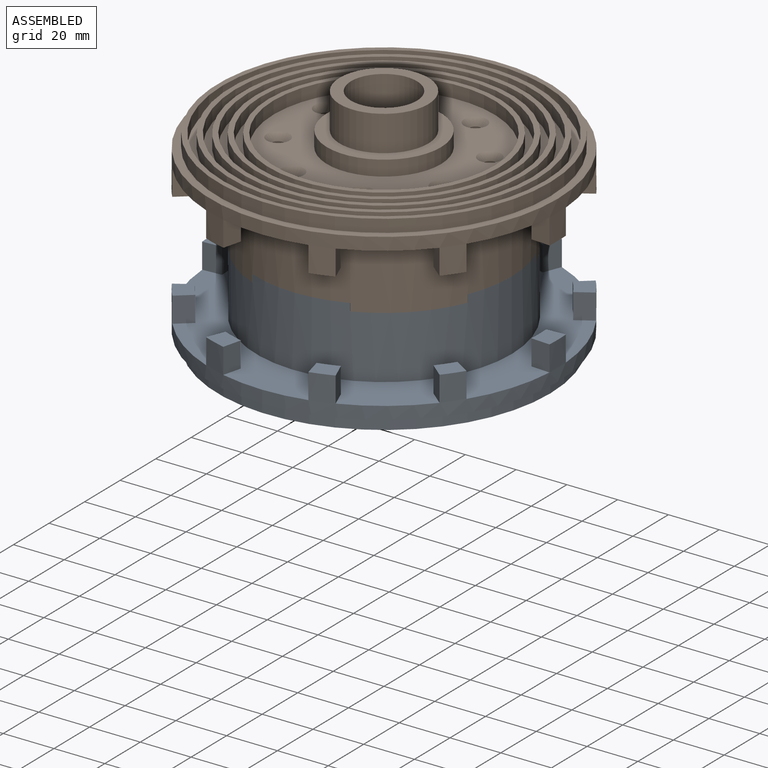
[diagram: assembled view]
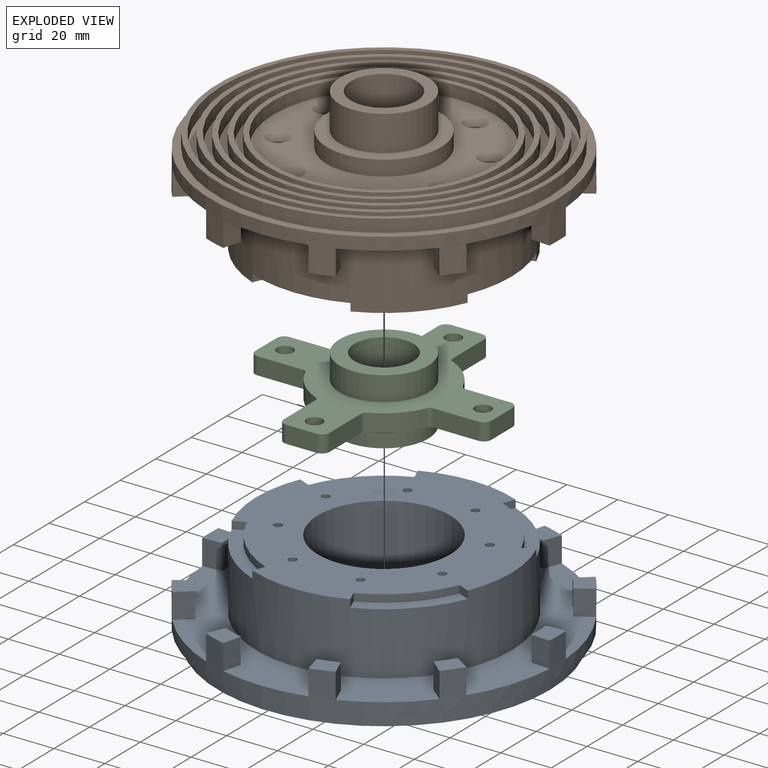
[diagram: exploded view]
GUIDED TOUR — MATED ASSEMBLY (Onshape document 10df3d06e0f9d85a6f5e6462, AutoMate assembly 10df3d06e0f9d85a6f5e6462_b576a68d9322fb40dd71ba98_1f96c116ace7674551269e63_default)

This assembly has 3 components, labeled P0..P2 below (a component is one placed occurrence of a part; the same part can appear more than once), held together by 2 mates. A mate is a constraint between two components; its type names the relative motion it leaves free:
  FASTENED — locks the two components together rigidly (no relative motion).
Axis/direction vectors are unit vectors and 'through' points are millimeter coordinates, both in the assembly's world frame.

MATES
  1. FASTENED "Fastened 3": P0 <-> P1, direction (0.000, 0.000, 1.000) through (0.00, 0.00, -52.60) mm
  2. FASTENED "Fastened 2": P1 <-> P2, direction (0.000, 0.000, -1.000) through (0.00, -39.00, -45.60) mm

ASSEMBLY ORDER
  1. P1 — the base component [order heuristic]
  2. P2 — core [order heuristic]
  3. P0 [order verified]
(P0 verified with a relaxed clearance tolerance: the source model stores slight part interference there.)
Order-tag legend:
  [order verified] — this step's position reverses a verified removal order: the component was checked to insert without passing through the ones already placed.
  [order heuristic] — the first 2 components form the assembly's core: parts whose collision-free extraction could not be verified, listed in mate-graph order.

Of the 3 components, 2 carry the full construction recipe — the FeatureScript program that regenerates the part's solid from scratch; the rest are supplied as boundary geometry only.
Each toured component is shown spotlighted twice — in the assembled view, then in the exploded view, where a leader line traces a displaced component back to its assembled socket (saturated green if recipe-attached, orange if geometry-only; every other component desaturated gray) — followed by its recipe or geometry summary and the mates that hold it.
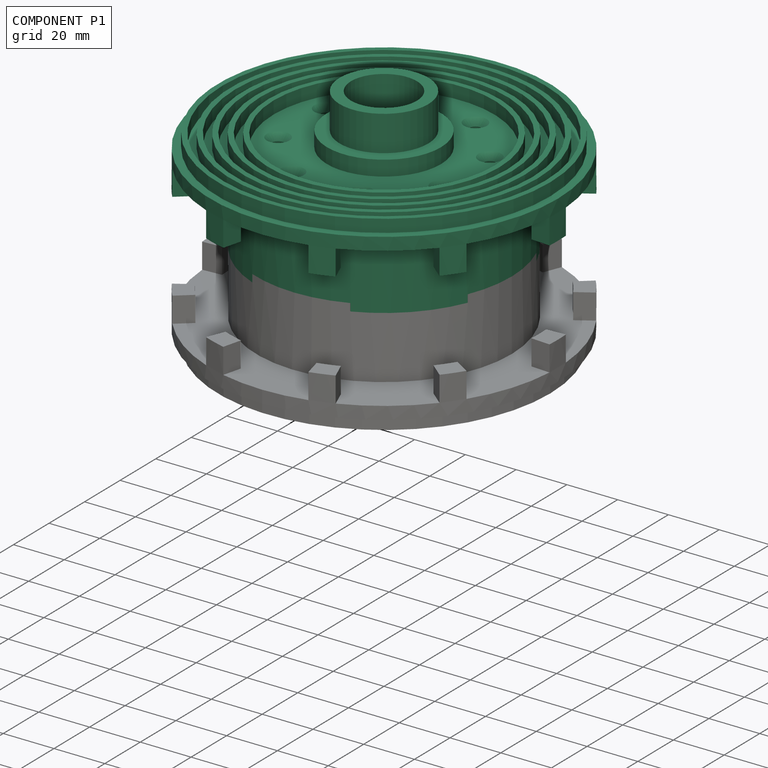
[diagram: component P1 — assembled]
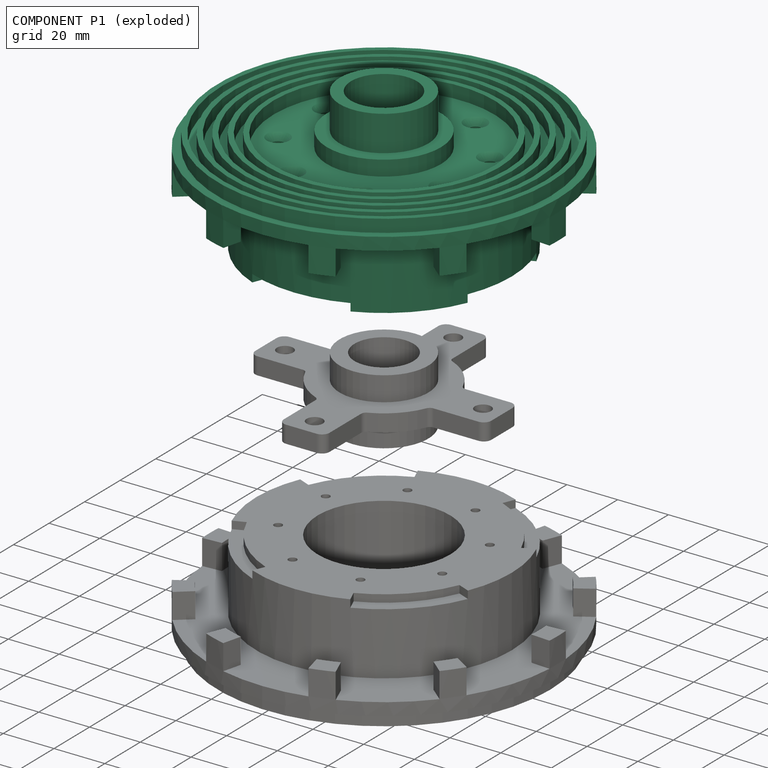
[diagram: component P1 — exploded]
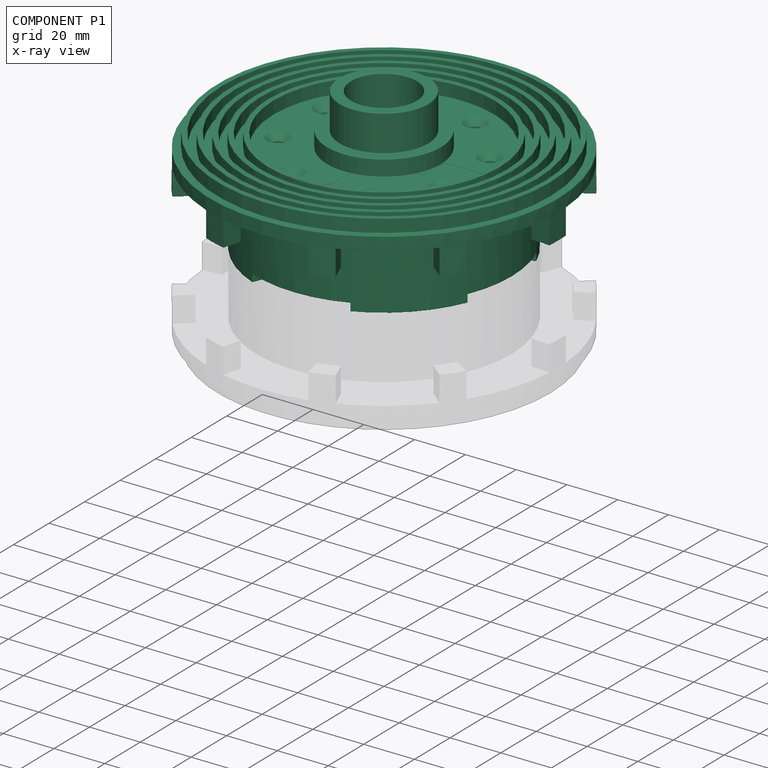
[diagram: component P1 — x-ray view]
COMPONENT P1 — recipe-attached (CADFS 00198858, mesh-verified: the recipe's output STEP matches this component's geometry to below the mesh-comparison resolution (tessellation chordal tolerance ~0.303 mm)).
Held by: FASTENED mate "Fastened 3" to P0; FASTENED mate "Fastened 2" to P2.
Construction recipe (FeatureScript — the CAD program that rebuilds this solid; sketch coordinates are in the units given by the * unit suffixes, e.g. mm):

FeatureScript 1511;
import(path : "onshape/std/geometry.fs", version : "1511.0");
import(path : "onshape/std/common.fs", version : "1511.0");
const mm = millimeter;
const VERTEX = EntityType.VERTEX;
const EDGE = EntityType.EDGE;
const FACE = EntityType.FACE;
const BODY = EntityType.BODY;
function v(x, y){return vector(x, y);}
function OD(order){return orderDisambiguation(order);}
function OSD(set){return originalSetDisambiguation(set);}
function TD(topology){return topologyDisambiguation(topology);}
function TDD(query){return trueDependencyDisambiguation(query);}
function sQuery(a, b, c) {return sketchEntityQuery(a, b, c);}

annotation { "Feature Type Name" : "Feature", "Feature Type Description" : "" }
export const myFeature = defineFeature(function(context is Context, id is Id, definition is map)
    precondition{}
    {
        {
            var Q0;
            Q0=qCreatedBy(makeId("Top.planeOp"),FACE);
            var sketch = newSketch(context, id + "F0", { "sketchPlane" : qUnion([Q0])});
            skCircle(sketch, "E0", {"center": v(0, 0) * mm, "radius": 50.15 * mm, "construction": true});
            skCircle(sketch, "E1", {"center": v(0, 0) * mm, "radius": 68.57 * mm});
            skCircle(sketch, "E2", {"center": v(0, 0) * mm, "radius": 61.01 * mm, "construction": true});
            skSolve(sketch);
        }
        {
            var Q0;
            Q0 = qSketchRegion(id + "F0", true);
            extrude(context, id + "F1", {"entities" : qUnion([Q0]), "depth" : 27.6 * mm});
        }
        {
            var Q0;
            Q0=makeQuery(id+"F1.opExtrude","CAP_FACE",FACE,{"disambiguationData":[OSD([sQuery(id+"F0.wireOp",EDGE,"E1")])],"isStart":true});
            var sketch = newSketch(context, id + "F2", { "sketchPlane" : qUnion([Q0])});
            skLineSegment(sketch, "E3", {"start": v(0, 0) * mm, "end": v(-16.76, -66.49) * mm, "construction": true});
            skLineSegment(sketch, "E4", {"start": v(0, 0) * mm, "end": v(20.02, -79.4) * mm, "construction": true});
            skLineSegment(sketch, "E5", {"start": v(-14.91, -59.15) * mm, "end": v(14.91, -59.15) * mm});
            skLineSegment(sketch, "E6", {"start": v(-14.91, -59.15) * mm, "end": v(-18.58, -73.7) * mm});
            skLineSegment(sketch, "E7", {"start": v(-18.58, -73.7) * mm, "end": v(18.58, -73.7) * mm});
            skLineSegment(sketch, "E8", {"start": v(18.58, -73.7) * mm, "end": v(14.91, -59.15) * mm});
            skSolve(sketch);
        }
        {
            var Q0;
            Q0 = qSketchRegion(id + "F2", true);
            extrude(context, id + "F3", {"entities" : qUnion([Q0]), "endBound" : BoundingType.SYMMETRIC, "depth" : 75 * mm});
        }
        {
            var Q0;
            Q0=makeQuery(id+"F3.opExtrude","SWEPT_BODY",BODY,{"disambiguationData":[OSD([sQuery(id+"F2.wireOp",EDGE,"E5"),sQuery(id+"F2.wireOp",EDGE,"E6"),sQuery(id+"F2.wireOp",EDGE,"E7"),sQuery(id+"F2.wireOp",EDGE,"E8")])]});
            var Q1;
            Q1=makeQuery(id+"F1.opExtrude","SWEPT_FACE",FACE,{"disambiguationData":[OSD([sQuery(id+"F0.wireOp",EDGE,"E1")])]});
            circularPattern(context, id + "F4", {"entities" : qUnion([Q0]), "axis" : qUnion([Q1]), "angle" : 36 * degree, "instanceCount" : 10});
        }
        {
            var Q0;
            Q0=makeQuery(id+"F4.opPattern","COPY",BODY,{"derivedFrom":makeQuery(id+"F3.opExtrude","SWEPT_BODY",BODY,{"disambiguationData":[OSD([sQuery(id+"F2.wireOp",EDGE,"E5"),sQuery(id+"F2.wireOp",EDGE,"E6"),sQuery(id+"F2.wireOp",EDGE,"E7"),sQuery(id+"F2.wireOp",EDGE,"E8")])]}),"instanceName":"7"});
            var Q1;
            Q1=makeQuery(id+"F4.opPattern","COPY",BODY,{"derivedFrom":makeQuery(id+"F3.opExtrude","SWEPT_BODY",BODY,{"disambiguationData":[OSD([sQuery(id+"F2.wireOp",EDGE,"E5"),sQuery(id+"F2.wireOp",EDGE,"E6"),sQuery(id+"F2.wireOp",EDGE,"E7"),sQuery(id+"F2.wireOp",EDGE,"E8")])]}),"instanceName":"8"});
            var Q2;
            Q2=makeQuery(id+"F4.opPattern","COPY",BODY,{"derivedFrom":makeQuery(id+"F3.opExtrude","SWEPT_BODY",BODY,{"disambiguationData":[OSD([sQuery(id+"F2.wireOp",EDGE,"E5"),sQuery(id+"F2.wireOp",EDGE,"E6"),sQuery(id+"F2.wireOp",EDGE,"E7"),sQuery(id+"F2.wireOp",EDGE,"E8")])]}),"instanceName":"9"});
            var Q3;
            Q3=makeQuery(id+"F3.opExtrude","SWEPT_BODY",BODY,{"disambiguationData":[OSD([sQuery(id+"F2.wireOp",EDGE,"E5"),sQuery(id+"F2.wireOp",EDGE,"E6"),sQuery(id+"F2.wireOp",EDGE,"E7"),sQuery(id+"F2.wireOp",EDGE,"E8")])]});
            var Q4;
            Q4=makeQuery(id+"F4.opPattern","COPY",BODY,{"derivedFrom":makeQuery(id+"F3.opExtrude","SWEPT_BODY",BODY,{"disambiguationData":[OSD([sQuery(id+"F2.wireOp",EDGE,"E5"),sQuery(id+"F2.wireOp",EDGE,"E6"),sQuery(id+"F2.wireOp",EDGE,"E7"),sQuery(id+"F2.wireOp",EDGE,"E8")])]}),"instanceName":"1"});
            var Q5;
            Q5=makeQuery(id+"F4.opPattern","COPY",BODY,{"derivedFrom":makeQuery(id+"F3.opExtrude","SWEPT_BODY",BODY,{"disambiguationData":[OSD([sQuery(id+"F2.wireOp",EDGE,"E5"),sQuery(id+"F2.wireOp",EDGE,"E6"),sQuery(id+"F2.wireOp",EDGE,"E7"),sQuery(id+"F2.wireOp",EDGE,"E8")])]}),"instanceName":"2"});
            var Q6;
            Q6=makeQuery(id+"F4.opPattern","COPY",BODY,{"derivedFrom":makeQuery(id+"F3.opExtrude","SWEPT_BODY",BODY,{"disambiguationData":[OSD([sQuery(id+"F2.wireOp",EDGE,"E5"),sQuery(id+"F2.wireOp",EDGE,"E6"),sQuery(id+"F2.wireOp",EDGE,"E7"),sQuery(id+"F2.wireOp",EDGE,"E8")])]}),"instanceName":"3"});
            var Q7;
            Q7=makeQuery(id+"F4.opPattern","COPY",BODY,{"derivedFrom":makeQuery(id+"F3.opExtrude","SWEPT_BODY",BODY,{"disambiguationData":[OSD([sQuery(id+"F2.wireOp",EDGE,"E5"),sQuery(id+"F2.wireOp",EDGE,"E6"),sQuery(id+"F2.wireOp",EDGE,"E7"),sQuery(id+"F2.wireOp",EDGE,"E8")])]}),"instanceName":"4"});
            var Q8;
            Q8=makeQuery(id+"F4.opPattern","COPY",BODY,{"derivedFrom":makeQuery(id+"F3.opExtrude","SWEPT_BODY",BODY,{"disambiguationData":[OSD([sQuery(id+"F2.wireOp",EDGE,"E5"),sQuery(id+"F2.wireOp",EDGE,"E6"),sQuery(id+"F2.wireOp",EDGE,"E7"),sQuery(id+"F2.wireOp",EDGE,"E8")])]}),"instanceName":"5"});
            var Q9;
            Q9=makeQuery(id+"F4.opPattern","COPY",BODY,{"derivedFrom":makeQuery(id+"F3.opExtrude","SWEPT_BODY",BODY,{"disambiguationData":[OSD([sQuery(id+"F2.wireOp",EDGE,"E5"),sQuery(id+"F2.wireOp",EDGE,"E6"),sQuery(id+"F2.wireOp",EDGE,"E7"),sQuery(id+"F2.wireOp",EDGE,"E8")])]}),"instanceName":"6"});
            var Q10;
            Q10=makeQuery(id+"F1.opExtrude","SWEPT_BODY",BODY,{"disambiguationData":[OSD([sQuery(id+"F0.wireOp",EDGE,"E1")])]});
            booleanBodies(context, id + "F5", {"operationType" : BooleanOperationType.SUBTRACTION, "tools" : qUnion([Q0, Q1, Q2, Q3, Q4, Q5, Q6, Q7, Q8, Q9]), "targets" : qUnion([Q10])});
        }
        {
            var Q0;
            Q0=makeQuery(id+"F1.opExtrude","CAP_FACE",FACE,{"disambiguationData":[OSD([sQuery(id+"F0.wireOp",EDGE,"E1")])],"isStart":false});
            var sketch = newSketch(context, id + "F6", { "sketchPlane" : qUnion([Q0])});
            skCircle(sketch, "E9", {"center": v(0, 0) * mm, "radius": 68.57 * mm});
            skSolve(sketch);
        }
        {
            var Q0;
            Q0 = qSketchRegion(id + "F6", true);
            extrude(context, id + "F7", {"entities" : qUnion([Q0]), "operationType" : NewBodyOperationType.ADD, "depth" : 10 * mm});
        }
        {
            var Q0;
            Q0=makeQuery(id+"F1.opExtrude","CAP_FACE",FACE,{"disambiguationData":[OSD([sQuery(id+"F0.wireOp",EDGE,"E1")])],"isStart":true});
            var sketch = newSketch(context, id + "F8", { "sketchPlane" : qUnion([Q0])});
            skCircle(sketch, "E10", {"center": v(0, 0) * mm, "radius": 50.35 * mm});
            skCircle(sketch, "E11", {"center": v(0, 0) * mm, "radius": 61.1 * mm});
            skSolve(sketch);
        }
        {
            var Q0;
            Q0 = qSketchRegion(id + "F8", true);
            extrude(context, id + "F9", {"entities" : qUnion([Q0]), "operationType" : NewBodyOperationType.REMOVE, "oppositeDirection" : true, "depth" : 27.6 * mm});
        }
        {
            var Q0;
            Q0=qCreatedBy(makeId("Front.planeOp"),FACE);
            var sketch = newSketch(context, id + "F10", { "sketchPlane" : qUnion([Q0])});
            skLineSegment(sketch, "E12", {"start": v(0, 42.6) * mm, "end": v(-100, 42.6) * mm});
            skLineSegment(sketch, "E13", {"start": v(-100, 42.6) * mm, "end": v(-100, 32.6) * mm});
            skLineSegment(sketch, "E14", {"start": v(-100, 32.6) * mm, "end": v(-65.5, 32.6) * mm});
            skLineSegment(sketch, "E15", {"start": v(-65.5, 32.6) * mm, "end": v(-65.5, 39.6) * mm});
            skLineSegment(sketch, "E16", {"start": v(-65.5, 39.6) * mm, "end": v(-63.5, 39.6) * mm});
            skLineSegment(sketch, "E17", {"start": v(-63.5, 39.6) * mm, "end": v(-63.5, 32.6) * mm});
            skLineSegment(sketch, "E18", {"start": v(-63.5, 32.6) * mm, "end": v(-60.5, 32.6) * mm});
            skLineSegment(sketch, "E19", {"start": v(-60.5, 32.6) * mm, "end": v(-60.5, 39.6) * mm});
            skLineSegment(sketch, "E20", {"start": v(-60.5, 39.6) * mm, "end": v(-58.5, 39.6) * mm});
            skLineSegment(sketch, "E21", {"start": v(-58.5, 39.6) * mm, "end": v(-58.5, 32.6) * mm});
            skLineSegment(sketch, "E22", {"start": v(-58.5, 32.6) * mm, "end": v(-55.5, 32.6) * mm});
            skLineSegment(sketch, "E23", {"start": v(-55.5, 32.6) * mm, "end": v(-55.5, 39.6) * mm});
            skLineSegment(sketch, "E24", {"start": v(-55.5, 39.6) * mm, "end": v(-53.5, 39.6) * mm});
            skLineSegment(sketch, "E25", {"start": v(-53.5, 39.6) * mm, "end": v(-53.5, 32.6) * mm});
            skLineSegment(sketch, "E26", {"start": v(-53.5, 32.6) * mm, "end": v(-50.5, 32.6) * mm});
            skLineSegment(sketch, "E27", {"start": v(-50.5, 32.6) * mm, "end": v(-50.5, 39.6) * mm});
            skLineSegment(sketch, "E28", {"start": v(-50.5, 39.6) * mm, "end": v(-48.5, 39.6) * mm});
            skLineSegment(sketch, "E29", {"start": v(-48.5, 39.6) * mm, "end": v(-48.5, 32.6) * mm});
            skLineSegment(sketch, "E30", {"start": v(-48.5, 32.6) * mm, "end": v(-45.5, 32.6) * mm});
            skLineSegment(sketch, "E31", {"start": v(-45.5, 32.6) * mm, "end": v(-45.5, 39.6) * mm});
            skLineSegment(sketch, "E32", {"start": v(-45.5, 39.6) * mm, "end": v(-43.5, 39.6) * mm});
            skLineSegment(sketch, "E33", {"start": v(-43.5, 39.6) * mm, "end": v(-43.5, 32.6) * mm});
            skLineSegment(sketch, "E34", {"start": v(-43.5, 32.6) * mm, "end": v(0, 32.6) * mm});
            skLineSegment(sketch, "E35", {"start": v(0, 32.6) * mm, "end": v(0, 42.6) * mm});
            skSolve(sketch);
        }
        {
            var Q0;
            Q0 = qSketchRegion(id + "F10", true);
            var Q1;
            Q1=sQuery(id+"F10.wireOp",EDGE,"E35");
            revolve(context, id + "F11", {"operationType" : NewBodyOperationType.REMOVE, "entities" : qUnion([Q0]), "axis" : qUnion([Q1]), "revolveType" : RevolveType.FULL, "oppositeDirection" : true});
        }
        {
            var Q0;
            Q0=makeQuery(id+"F11.boolean.opBoolean","COPY",FACE,{"derivedFrom":makeQuery(id+"F11.opRevolve","SWEPT_FACE",FACE,{"disambiguationData":[OSD([sQuery(id+"F10.wireOp",EDGE,"E34")])]})});
            var sketch = newSketch(context, id + "F12", { "sketchPlane" : qUnion([Q0])});
            skCircle(sketch, "E36", {"center": v(0, 0) * mm, "radius": 22.5 * mm});
            skSolve(sketch);
        }
        {
            var Q0;
            Q0 = qSketchRegion(id + "F12", true);
            extrude(context, id + "F13", {"entities" : qUnion([Q0]), "operationType" : NewBodyOperationType.ADD, "depth" : 6 * mm});
        }
        {
            var Q0;
            Q0=makeQuery(id+"F13.opExtrude","CAP_FACE",FACE,{"disambiguationData":[OSD([sQuery(id+"F12.wireOp",EDGE,"E36")])],"isStart":false});
            var sketch = newSketch(context, id + "F14", { "sketchPlane" : qUnion([Q0])});
            skCircle(sketch, "E37", {"center": v(0, 0) * mm, "radius": 17.5 * mm});
            skSolve(sketch);
        }
        {
            var Q0;
            Q0 = qSketchRegion(id + "F14", true);
            extrude(context, id + "F15", {"entities" : qUnion([Q0]), "operationType" : NewBodyOperationType.ADD, "depth" : 14 * mm});
        }
        {
            var Q0;
            Q0=makeQuery(id+"F9.boolean.opBoolean","SPLIT",FACE,{"disambiguationData":[TD([makeQuery(id+"F9.opExtrude","SWEPT_FACE",FACE,{"disambiguationData":[OSD([sQuery(id+"F8.wireOp",EDGE,"E10")])]})])],"derivedFrom":makeQuery(id+"F1.opExtrude","CAP_FACE",FACE,{"disambiguationData":[OSD([sQuery(id+"F0.wireOp",EDGE,"E1")])],"isStart":true})});
            var sketch = newSketch(context, id + "F16", { "sketchPlane" : qUnion([Q0])});
            skCircle(sketch, "E38", {"center": v(0, 0) * mm, "radius": 55 * mm});
            skCircle(sketch, "E39", {"center": v(0, 0) * mm, "radius": 90 * mm});
            skSolve(sketch);
        }
        {
            var Q0;
            Q0 = qSketchRegion(id + "F16", true);
            extrude(context, id + "F17", {"entities" : qUnion([Q0]), "operationType" : NewBodyOperationType.REMOVE, "oppositeDirection" : true, "depth" : 17.6 * mm});
        }
        {
            var Q0;
            Q0=makeQuery(id+"F9.boolean.opBoolean","SPLIT",FACE,{"disambiguationData":[TD([makeQuery(id+"F9.opExtrude","SWEPT_FACE",FACE,{"disambiguationData":[OSD([sQuery(id+"F8.wireOp",EDGE,"E10")])]})])],"derivedFrom":makeQuery(id+"F1.opExtrude","CAP_FACE",FACE,{"disambiguationData":[OSD([sQuery(id+"F0.wireOp",EDGE,"E1")])],"isStart":true})});
            var sketch = newSketch(context, id + "F18", { "sketchPlane" : qUnion([Q0])});
            skCircle(sketch, "E40", {"center": v(0, 0) * mm, "radius": 26.1 * mm});
            skSolve(sketch);
        }
        {
            var Q0;
            Q0 = qSketchRegion(id + "F18", true);
            extrude(context, id + "F19", {"entities" : qUnion([Q0]), "operationType" : NewBodyOperationType.REMOVE, "oppositeDirection" : true, "depth" : 27.6 * mm});
        }
        {
            var Q0;
            Q0=makeQuery(id+"F9.boolean.opBoolean","SPLIT",FACE,{"disambiguationData":[TD([makeQuery(id+"F9.opExtrude","SWEPT_FACE",FACE,{"disambiguationData":[OSD([sQuery(id+"F8.wireOp",EDGE,"E10")])]})])],"derivedFrom":makeQuery(id+"F1.opExtrude","CAP_FACE",FACE,{"disambiguationData":[OSD([sQuery(id+"F0.wireOp",EDGE,"E1")])],"isStart":true})});
            var sketch = newSketch(context, id + "F20", { "sketchPlane" : qUnion([Q0])});
            skLineSegment(sketch, "E41", {"start": v(0, 0) * mm, "end": v(42.3, 0) * mm, "construction": true});
            skLineSegment(sketch, "E42", {"start": v(46.6, 0) * mm, "end": v(46.6, -7.1) * mm});
            skLineSegment(sketch, "E43", {"start": v(44.6, -9.1) * mm, "end": v(26.47, -9.1) * mm});
            skLineSegment(sketch, "E44", {"start": v(0, 0) * mm, "end": v(28.28, -28.28) * mm, "construction": true});
            skLineSegment(sketch, "E45.MirrorCS", {"start": v(9.1, -44.6) * mm, "end": v(9.1, -26.47) * mm});
            skLineSegment(sketch, "E46.MirrorCS", {"start": v(0, -46.6) * mm, "end": v(7.1, -46.6) * mm});
            skArc(sketch, "E47", {"start": v(23.74, -10.85) * mm, "mid": v(18.46, -18.46) * mm, "end": v(10.85, -23.74) * mm});
            skPoint(sketch, "E48.visualSharp", {"position": v(46.6, -9.1) * mm});
            skArc(sketch, "E48.filletArc", {"start": v(44.6, -9.1) * mm, "mid": v(46.01, -8.51) * mm, "end": v(46.6, -7.1) * mm});
            skPoint(sketch, "E49.visualSharp", {"position": v(9.1, -46.6) * mm});
            skArc(sketch, "E49.filletArc", {"start": v(7.1, -46.6) * mm, "mid": v(8.51, -46.01) * mm, "end": v(9.1, -44.6) * mm});
            skPoint(sketch, "E50.visualSharp", {"position": v(24.46, -9.1) * mm});
            skArc(sketch, "E50.filletArc", {"start": v(26.47, -9.1) * mm, "mid": v(24.84, -9.58) * mm, "end": v(23.74, -10.85) * mm});
            skPoint(sketch, "E51.visualSharp", {"position": v(9.1, -24.46) * mm});
            skArc(sketch, "E51.filletArc", {"start": v(10.85, -23.74) * mm, "mid": v(9.58, -24.84) * mm, "end": v(9.1, -26.47) * mm});
            skLineSegment(sketch, "E52.MirrorCS", {"start": v(46.6, 0) * mm, "end": v(46.6, 7.1) * mm});
            skArc(sketch, "E53.MirrorCS", {"start": v(44.6, 9.1) * mm, "mid": v(46.01, 8.51) * mm, "end": v(46.6, 7.1) * mm});
            skLineSegment(sketch, "E54.MirrorCS", {"start": v(44.6, 9.1) * mm, "end": v(26.47, 9.1) * mm});
            skArc(sketch, "E55.MirrorCS", {"start": v(26.47, 9.1) * mm, "mid": v(24.84, 9.58) * mm, "end": v(23.74, 10.85) * mm});
            skArc(sketch, "E56.MirrorCS", {"start": v(23.74, 10.85) * mm, "mid": v(18.46, 18.46) * mm, "end": v(10.85, 23.74) * mm});
            skArc(sketch, "E57.MirrorCS", {"start": v(10.85, 23.74) * mm, "mid": v(9.58, 24.84) * mm, "end": v(9.1, 26.47) * mm});
            skLineSegment(sketch, "E58.MirrorCS", {"start": v(9.1, 44.6) * mm, "end": v(9.1, 26.47) * mm});
            skArc(sketch, "E59.MirrorCS", {"start": v(7.1, 46.6) * mm, "mid": v(8.51, 46.01) * mm, "end": v(9.1, 44.6) * mm});
            skLineSegment(sketch, "E60.MirrorCS", {"start": v(0, 46.6) * mm, "end": v(7.1, 46.6) * mm});
            skLineSegment(sketch, "E61", {"start": v(0, 0) * mm, "end": v(0, -19.41) * mm, "construction": true});
            skLineSegment(sketch, "E62.MirrorCS", {"start": v(0, 46.6) * mm, "end": v(-7.1, 46.6) * mm});
            skArc(sketch, "E63.MirrorCS", {"start": v(-7.1, 46.6) * mm, "mid": v(-8.51, 46.01) * mm, "end": v(-9.1, 44.6) * mm});
            skLineSegment(sketch, "E64.MirrorCS", {"start": v(-9.1, 44.6) * mm, "end": v(-9.1, 26.47) * mm});
            skArc(sketch, "E65.MirrorCS", {"start": v(-10.85, 23.74) * mm, "mid": v(-9.58, 24.84) * mm, "end": v(-9.1, 26.47) * mm});
            skArc(sketch, "E66.MirrorCS", {"start": v(-23.74, 10.85) * mm, "mid": v(-18.46, 18.46) * mm, "end": v(-10.85, 23.74) * mm});
            skArc(sketch, "E67.MirrorCS", {"start": v(-26.47, 9.1) * mm, "mid": v(-24.84, 9.58) * mm, "end": v(-23.74, 10.85) * mm});
            skLineSegment(sketch, "E68.MirrorCS", {"start": v(-44.6, 9.1) * mm, "end": v(-26.47, 9.1) * mm});
            skArc(sketch, "E69.MirrorCS", {"start": v(-44.6, 9.1) * mm, "mid": v(-46.01, 8.51) * mm, "end": v(-46.6, 7.1) * mm});
            skLineSegment(sketch, "E70.MirrorCS", {"start": v(-46.6, 0) * mm, "end": v(-46.6, 7.1) * mm});
            skLineSegment(sketch, "E71.MirrorCS", {"start": v(-46.6, 0) * mm, "end": v(-46.6, -7.1) * mm});
            skArc(sketch, "E72.MirrorCS", {"start": v(-44.6, -9.1) * mm, "mid": v(-46.01, -8.51) * mm, "end": v(-46.6, -7.1) * mm});
            skLineSegment(sketch, "E73.MirrorCS", {"start": v(-44.6, -9.1) * mm, "end": v(-26.47, -9.1) * mm});
            skArc(sketch, "E74.MirrorCS", {"start": v(-26.47, -9.1) * mm, "mid": v(-24.84, -9.58) * mm, "end": v(-23.74, -10.85) * mm});
            skArc(sketch, "E75.MirrorCS", {"start": v(-23.74, -10.85) * mm, "mid": v(-18.46, -18.46) * mm, "end": v(-10.85, -23.74) * mm});
            skArc(sketch, "E76.MirrorCS", {"start": v(-10.85, -23.74) * mm, "mid": v(-9.58, -24.84) * mm, "end": v(-9.1, -26.47) * mm});
            skLineSegment(sketch, "E77.MirrorCS", {"start": v(-9.1, -44.6) * mm, "end": v(-9.1, -26.47) * mm});
            skArc(sketch, "E78.MirrorCS", {"start": v(-7.1, -46.6) * mm, "mid": v(-8.51, -46.01) * mm, "end": v(-9.1, -44.6) * mm});
            skLineSegment(sketch, "E79.MirrorCS", {"start": v(0, -46.6) * mm, "end": v(-7.1, -46.6) * mm});
            skSolve(sketch);
        }
        {
            var Q0;
            Q0 = qSketchRegion(id + "F20", true);
            extrude(context, id + "F21", {"entities" : qUnion([Q0]), "operationType" : NewBodyOperationType.REMOVE, "oppositeDirection" : true, "depth" : 7 * mm});
        }
        {
            var Q0;
            {var subQ0=sQuery(id+"F20.wireOp",EDGE,"E58.MirrorCS");var subQ1=sQuery(id+"F20.wireOp",EDGE,"E57.MirrorCS");var subQ2=sQuery(id+"F20.wireOp",EDGE,"E59.MirrorCS");var subQ3=sQuery(id+"F20.wireOp",EDGE,"E62.MirrorCS");var subQ4=sQuery(id+"F20.wireOp",EDGE,"E60.MirrorCS");var subQ5=sQuery(id+"F20.wireOp",EDGE,"E63.MirrorCS");var subQ6=sQuery(id+"F20.wireOp",EDGE,"E64.MirrorCS");var subQ7=sQuery(id+"F20.wireOp",EDGE,"E65.MirrorCS");Q0=makeQuery(id+"F21.boolean.opBoolean","COPY",FACE,{"disambiguationData":[TD([makeQuery(id+"F21.opExtrude","SWEPT_FACE",FACE,{"disambiguationData":[OSD([subQ1])]})])],"derivedFrom":makeQuery(id+"F21.opExtrude","CAP_FACE",FACE,{"disambiguationData":[OSD([sQuery(id+"F20.wireOp",EDGE,"E42"),sQuery(id+"F20.wireOp",EDGE,"E43"),sQuery(id+"F20.wireOp",EDGE,"E45.MirrorCS"),sQuery(id+"F20.wireOp",EDGE,"E46.MirrorCS"),sQuery(id+"F20.wireOp",EDGE,"E47"),sQuery(id+"F20.wireOp",EDGE,"E48.filletArc"),sQuery(id+"F20.wireOp",EDGE,"E49.filletArc"),sQuery(id+"F20.wireOp",EDGE,"E50.filletArc"),sQuery(id+"F20.wireOp",EDGE,"E51.filletArc"),sQuery(id+"F20.wireOp",EDGE,"E52.MirrorCS"),sQuery(id+"F20.wireOp",EDGE,"E53.MirrorCS"),sQuery(id+"F20.wireOp",EDGE,"E54.MirrorCS"),sQuery(id+"F20.wireOp",EDGE,"E55.MirrorCS"),sQuery(id+"F20.wireOp",EDGE,"E56.MirrorCS"),subQ1,subQ0,subQ2,subQ4,subQ3,subQ5,subQ6,subQ7,sQuery(id+"F20.wireOp",EDGE,"E66.MirrorCS"),sQuery(id+"F20.wireOp",EDGE,"E67.MirrorCS"),sQuery(id+"F20.wireOp",EDGE,"E68.MirrorCS"),sQuery(id+"F20.wireOp",EDGE,"E69.MirrorCS"),sQuery(id+"F20.wireOp",EDGE,"E70.MirrorCS"),sQuery(id+"F20.wireOp",EDGE,"E71.MirrorCS"),sQuery(id+"F20.wireOp",EDGE,"E72.MirrorCS"),sQuery(id+"F20.wireOp",EDGE,"E73.MirrorCS"),sQuery(id+"F20.wireOp",EDGE,"E74.MirrorCS"),sQuery(id+"F20.wireOp",EDGE,"E75.MirrorCS"),sQuery(id+"F20.wireOp",EDGE,"E76.MirrorCS"),sQuery(id+"F20.wireOp",EDGE,"E77.MirrorCS"),sQuery(id+"F20.wireOp",EDGE,"E78.MirrorCS"),sQuery(id+"F20.wireOp",EDGE,"E79.MirrorCS")])],"isStart":false})});}
            var sketch = newSketch(context, id + "F22", { "sketchPlane" : qUnion([Q0])});
            skCircle(sketch, "E80", {"center": v(0, 0) * mm, "radius": 39 * mm, "construction": true});
            skPoint(sketch, "E81", {"position": v(39, 0) * mm});
            skPoint(sketch, "E82", {"position": v(0, -39) * mm});
            skPoint(sketch, "E83", {"position": v(-39, 0) * mm});
            skPoint(sketch, "E84", {"position": v(0, 39) * mm});
            skSolve(sketch);
        }
        {
            var Q0;
            Q0=sQuery(id+"F22.wireOp",VERTEX,"E81");
            var Q1;
            Q1=sQuery(id+"F22.wireOp",VERTEX,"E82");
            var Q2;
            Q2=sQuery(id+"F22.wireOp",VERTEX,"E83");
            var Q3;
            Q3=sQuery(id+"F22.wireOp",VERTEX,"E84");
            var Q4;
            Q4=makeQuery(id+"F1.opExtrude","SWEPT_BODY",BODY,{"disambiguationData":[OSD([sQuery(id+"F0.wireOp",EDGE,"E1")])]});
            hole(context, id + "F23", {"style" : HoleStyle.SIMPLE, "endStyle" : HoleEndStyle.BLIND, "standardTappedOrClearance" : lookupTablePath({ "standard" : "ISO", "engagement" : "75%", "pitch" : "1 mm", "size" : "M6", "type" : "Tapped" }), "standardBlindInLast" : lookupTablePath({ "standard" : "ISO", "engagement" : "75%", "pitch" : "1 mm", "size" : "M6", "type" : "Tapped" }), "holeDiameter" : 5 * mm, "holeDepth" : 12 * mm, "locations" : qUnion([Q0, Q1, Q2, Q3]), "scope" : qUnion([Q4]), "majorDiameter" : 6 * mm});
        }
        {
            var Q0;
            Q0=makeQuery(id+"F11.boolean.opBoolean","COPY",FACE,{"derivedFrom":makeQuery(id+"F11.opRevolve","SWEPT_FACE",FACE,{"disambiguationData":[OSD([sQuery(id+"F10.wireOp",EDGE,"E34")])]})});
            var sketch = newSketch(context, id + "F24", { "sketchPlane" : qUnion([Q0])});
            skLineSegment(sketch, "E85", {"start": v(0, 0) * mm, "end": v(-16.96, -40.95) * mm, "construction": true});
            skPoint(sketch, "E86", {"position": v(-13.4, -32.34) * mm});
            skPoint(sketch, "E87.1.0", {"position": v(13.4, -32.34) * mm});
            skPoint(sketch, "E87.2.0", {"position": v(32.34, -13.4) * mm});
            skPoint(sketch, "E87.3.0", {"position": v(32.34, 13.4) * mm});
            skPoint(sketch, "E87.4.0", {"position": v(13.4, 32.34) * mm});
            skPoint(sketch, "E87.5.0", {"position": v(-13.4, 32.34) * mm});
            skPoint(sketch, "E87.6.0", {"position": v(-32.34, 13.4) * mm});
            skPoint(sketch, "E87.7.0", {"position": v(-32.34, -13.4) * mm});
            skPoint(sketch, "E87.center", {"position": v(0, 0) * mm});
            skSolve(sketch);
        }
        {
            var Q0;
            Q0=sQuery(id+"F24.wireOp",VERTEX,"E86");
            var Q1;
            Q1=sQuery(id+"F24.wireOp",VERTEX,"E87.1.0");
            var Q2;
            Q2=sQuery(id+"F24.wireOp",VERTEX,"E87.2.0");
            var Q3;
            Q3=sQuery(id+"F24.wireOp",VERTEX,"E87.3.0");
            var Q4;
            Q4=sQuery(id+"F24.wireOp",VERTEX,"E87.4.0");
            var Q5;
            Q5=sQuery(id+"F24.wireOp",VERTEX,"E87.5.0");
            var Q6;
            Q6=sQuery(id+"F24.wireOp",VERTEX,"E87.6.0");
            var Q7;
            Q7=sQuery(id+"F24.wireOp",VERTEX,"E87.7.0");
            var Q8;
            Q8=makeQuery(id+"F1.opExtrude","SWEPT_BODY",BODY,{"disambiguationData":[OSD([sQuery(id+"F0.wireOp",EDGE,"E1")])]});
            hole(context, id + "F25", {"style" : HoleStyle.C_SINK, "endStyle" : HoleEndStyle.THROUGH, "standardTappedOrClearance" : lookupTablePath({ "standard" : "ISO", "fit" : "Close", "size" : "M4", "type" : "Clearance" }), "standardBlindInLast" : lookupTablePath({ "fit" : "Close", "standard" : "ISO", "size" : "M4", "type" : "Clearance" }), "holeDiameter" : 4.2 * mm, "cSinkDiameter" : 8.96 * mm, "cSinkAngle" : 90 * degree, "locations" : qUnion([Q0, Q1, Q2, Q3, Q4, Q5, Q6, Q7]), "scope" : qUnion([Q8]), "isTappedThrough" : true});
        }
        {
            var Q0;
            Q0=makeQuery(id+"F15.opExtrude","CAP_FACE",FACE,{"disambiguationData":[OSD([sQuery(id+"F14.wireOp",EDGE,"E37")])],"isStart":false});
            var sketch = newSketch(context, id + "F26", { "sketchPlane" : qUnion([Q0])});
            skCircle(sketch, "E88", {"center": v(0, 0) * mm, "radius": 13 * mm});
            skSolve(sketch);
        }
        {
            var Q0;
            Q0 = qSketchRegion(id + "F26", true);
            extrude(context, id + "F27", {"entities" : qUnion([Q0]), "operationType" : NewBodyOperationType.REMOVE, "endBound" : BoundingType.THROUGH_ALL, "oppositeDirection" : true, "depth" : 25 * mm});
        }
        {
            var Q0;
            Q0=makeQuery(id+"F9.boolean.opBoolean","SPLIT",FACE,{"disambiguationData":[TD([makeQuery(id+"F9.opExtrude","SWEPT_FACE",FACE,{"disambiguationData":[OSD([sQuery(id+"F8.wireOp",EDGE,"E10")])]})])],"derivedFrom":makeQuery(id+"F1.opExtrude","CAP_FACE",FACE,{"disambiguationData":[OSD([sQuery(id+"F0.wireOp",EDGE,"E1")])],"isStart":true})});
            var sketch = newSketch(context, id + "F28", { "sketchPlane" : qUnion([Q0])});
            skLineSegment(sketch, "E89", {"start": v(0, 0) * mm, "end": v(37.55, 37.55) * mm, "construction": true});
            skLineSegment(sketch, "E90", {"start": v(0, 0) * mm, "end": v(56.18, 23.27) * mm, "construction": true});
            skLineSegment(sketch, "E91", {"start": v(41.95, 17.49) * mm, "end": v(46.48, 19.36) * mm});
            skArc(sketch, "E92", {"start": v(41.95, 17.49) * mm, "mid": v(37.76, 25.3) * mm, "end": v(32.14, 32.14) * mm});
            skArc(sketch, "E93", {"start": v(46.48, 19.36) * mm, "mid": v(41.84, 28.01) * mm, "end": v(35.6, 35.6) * mm});
            skArc(sketch, "E94.MirrorCS", {"start": v(19.36, 46.48) * mm, "mid": v(28.01, 41.84) * mm, "end": v(35.6, 35.6) * mm});
            skLineSegment(sketch, "E95.MirrorCS", {"start": v(17.49, 41.95) * mm, "end": v(19.36, 46.48) * mm});
            skArc(sketch, "E96.MirrorCS", {"start": v(17.49, 41.95) * mm, "mid": v(25.3, 37.76) * mm, "end": v(32.14, 32.14) * mm});
            skLineSegment(sketch, "E97.MirrorCS", {"start": v(-17.49, 41.95) * mm, "end": v(-19.36, 46.48) * mm});
            skArc(sketch, "E98.MirrorCS", {"start": v(-19.36, 46.48) * mm, "mid": v(-28.01, 41.84) * mm, "end": v(-35.6, 35.6) * mm});
            skArc(sketch, "E99.MirrorCS", {"start": v(-46.48, 19.36) * mm, "mid": v(-41.84, 28.01) * mm, "end": v(-35.6, 35.6) * mm});
            skLineSegment(sketch, "E100.MirrorCS", {"start": v(-41.95, 17.49) * mm, "end": v(-46.48, 19.36) * mm});
            skArc(sketch, "E101.MirrorCS", {"start": v(-41.95, 17.49) * mm, "mid": v(-37.76, 25.3) * mm, "end": v(-32.14, 32.14) * mm});
            skArc(sketch, "E102.MirrorCS", {"start": v(-17.49, 41.95) * mm, "mid": v(-25.3, 37.76) * mm, "end": v(-32.14, 32.14) * mm});
            skLineSegment(sketch, "E103.MirrorCS", {"start": v(41.95, -17.49) * mm, "end": v(46.48, -19.36) * mm});
            skArc(sketch, "E104.MirrorCS", {"start": v(41.95, -17.49) * mm, "mid": v(37.76, -25.3) * mm, "end": v(32.14, -32.14) * mm});
            skArc(sketch, "E105.MirrorCS", {"start": v(17.49, -41.95) * mm, "mid": v(25.3, -37.76) * mm, "end": v(32.14, -32.14) * mm});
            skLineSegment(sketch, "E106.MirrorCS", {"start": v(17.49, -41.95) * mm, "end": v(19.36, -46.48) * mm});
            skArc(sketch, "E107.MirrorCS", {"start": v(19.36, -46.48) * mm, "mid": v(28.01, -41.84) * mm, "end": v(35.6, -35.6) * mm});
            skArc(sketch, "E108.MirrorCS", {"start": v(46.48, -19.36) * mm, "mid": v(41.84, -28.01) * mm, "end": v(35.6, -35.6) * mm});
            skArc(sketch, "E109.MirrorCS", {"start": v(-17.49, -41.95) * mm, "mid": v(-25.3, -37.76) * mm, "end": v(-32.14, -32.14) * mm});
            skArc(sketch, "E110.MirrorCS", {"start": v(-41.95, -17.49) * mm, "mid": v(-37.76, -25.3) * mm, "end": v(-32.14, -32.14) * mm});
            skLineSegment(sketch, "E111.MirrorCS", {"start": v(-41.95, -17.49) * mm, "end": v(-46.48, -19.36) * mm});
            skArc(sketch, "E112.MirrorCS", {"start": v(-46.48, -19.36) * mm, "mid": v(-41.84, -28.01) * mm, "end": v(-35.6, -35.6) * mm});
            skArc(sketch, "E113.MirrorCS", {"start": v(-19.36, -46.48) * mm, "mid": v(-28.01, -41.84) * mm, "end": v(-35.6, -35.6) * mm});
            skLineSegment(sketch, "E114.MirrorCS", {"start": v(-17.49, -41.95) * mm, "end": v(-19.36, -46.48) * mm});
            skSolve(sketch);
        }
        {
            var Q0;
            Q0 = qSketchRegion(id + "F28", true);
            extrude(context, id + "F29", {"entities" : qUnion([Q0]), "operationType" : NewBodyOperationType.ADD, "depth" : 3 * mm});
        }
    });
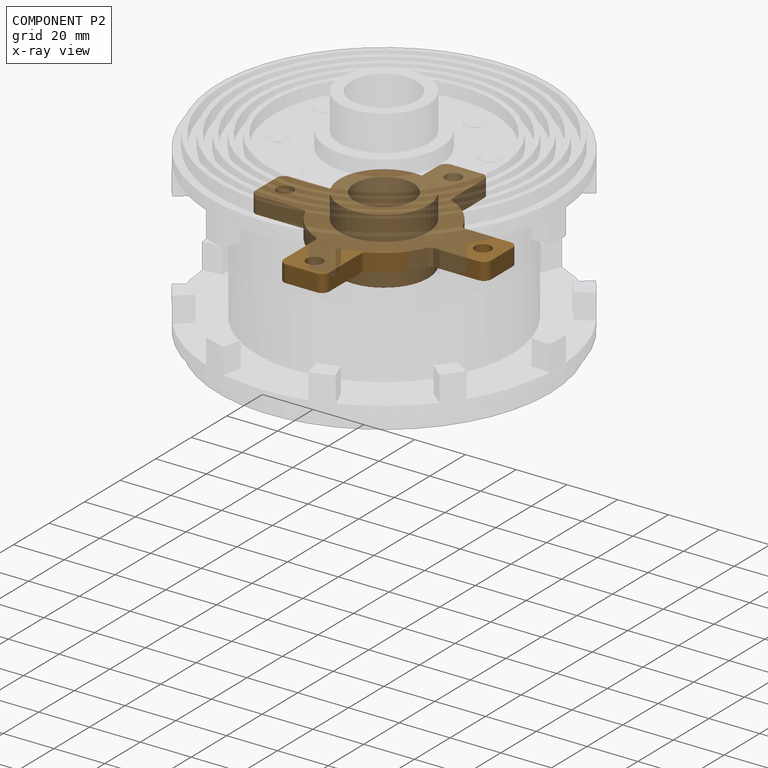
[diagram: component P2 — x-ray view]
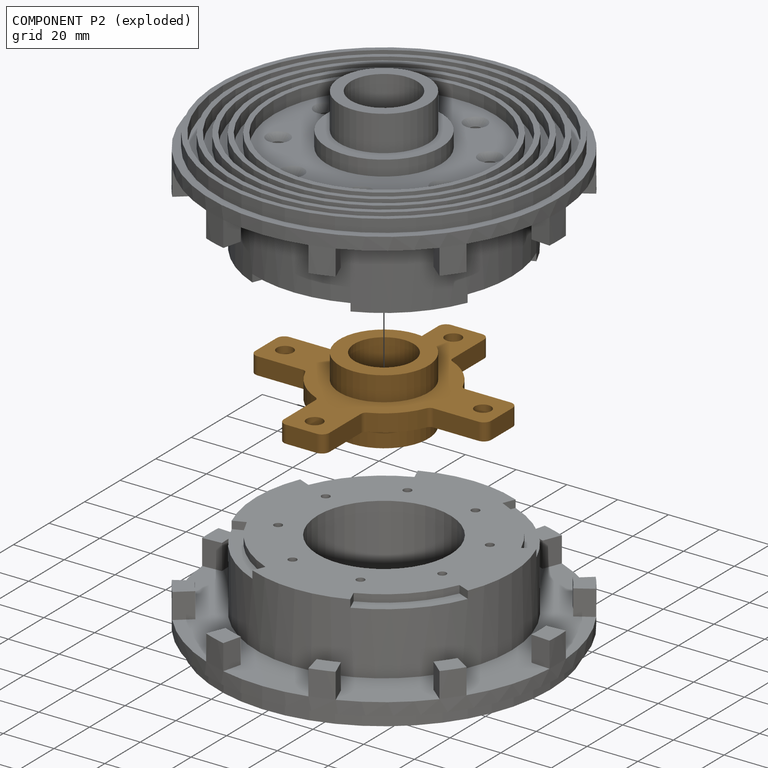
[diagram: component P2 — exploded]
COMPONENT P2 — geometry summary (no construction recipe available for this part):
  bounding box: 93.0 x 93.0 x 26.0 mm
  B-rep topology: 1 solid, 47 faces, 270 edges
  volume: 30575 mm^3 (14% of its bounding box)
  symmetry: 4-fold rotationally symmetric about the z axis; mirror-symmetric across its x mid-plane, y mid-plane
Held by: FASTENED mate "Fastened 2" to P1.
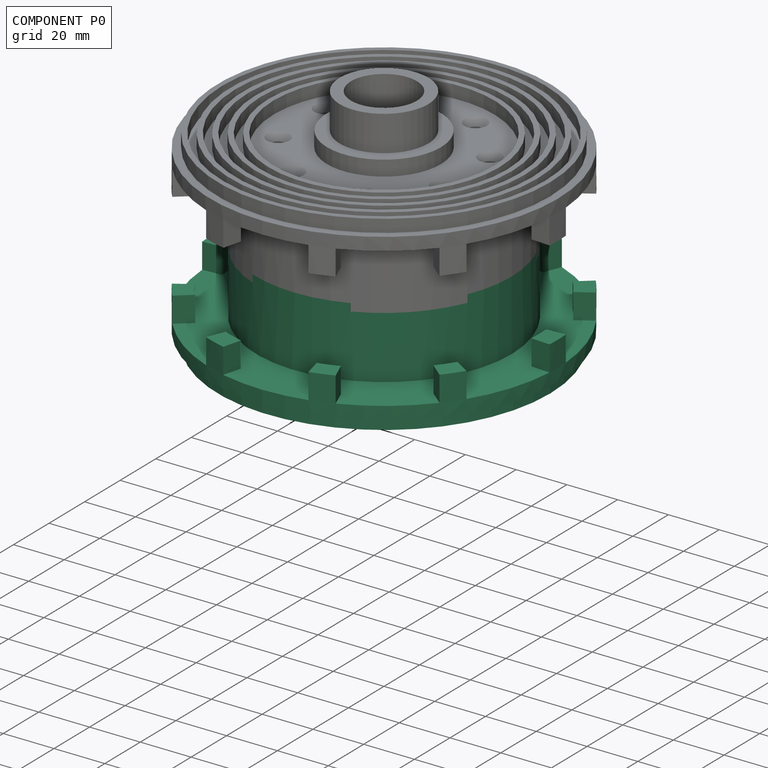
[diagram: component P0 — assembled]
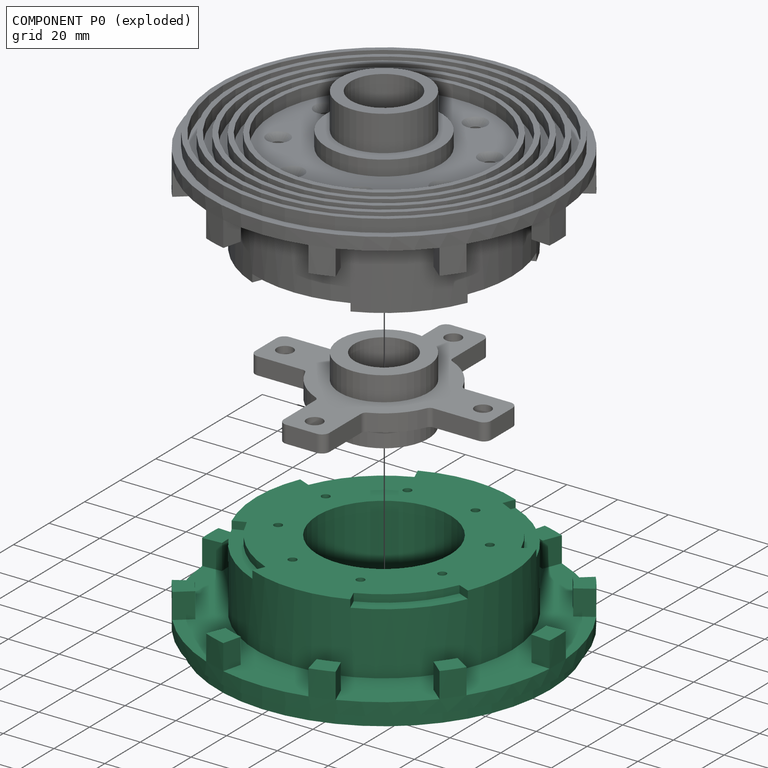
[diagram: component P0 — exploded]
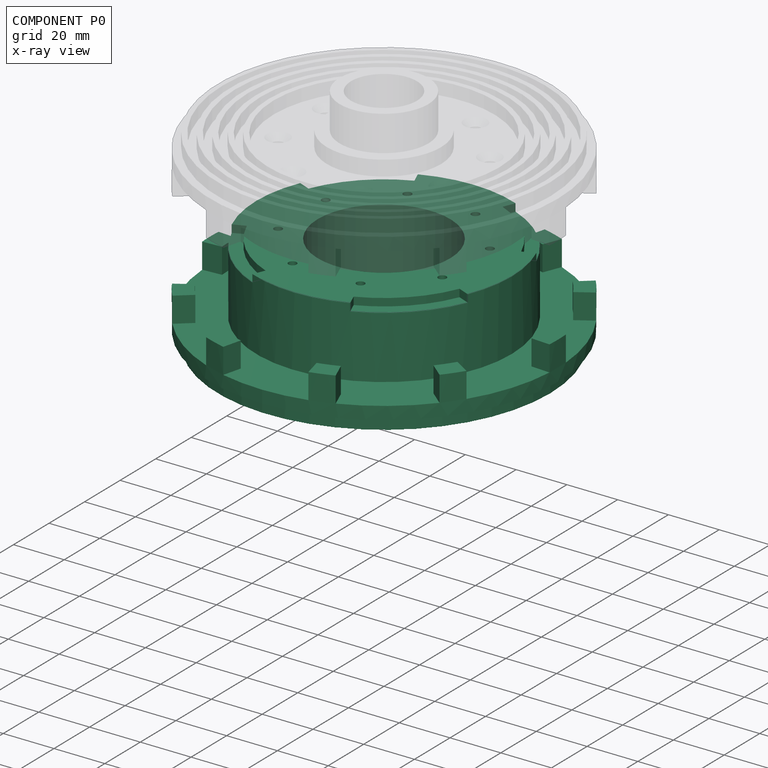
[diagram: component P0 — x-ray view]
COMPONENT P0 — recipe-attached (CADFS 00198859, mesh-verified: the recipe's output STEP matches this component's geometry to below the mesh-comparison resolution (tessellation chordal tolerance ~0.301 mm)).
Held by: FASTENED mate "Fastened 3" to P1.
Construction recipe (FeatureScript — the CAD program that rebuilds this solid; sketch coordinates are in the units given by the * unit suffixes, e.g. mm):

FeatureScript 1511;
import(path : "onshape/std/geometry.fs", version : "1511.0");
import(path : "onshape/std/common.fs", version : "1511.0");
const mm = millimeter;
const VERTEX = EntityType.VERTEX;
const EDGE = EntityType.EDGE;
const FACE = EntityType.FACE;
const BODY = EntityType.BODY;
function v(x, y){return vector(x, y);}
function OD(order){return orderDisambiguation(order);}
function OSD(set){return originalSetDisambiguation(set);}
function TD(topology){return topologyDisambiguation(topology);}
function TDD(query){return trueDependencyDisambiguation(query);}
function sQuery(a, b, c) {return sketchEntityQuery(a, b, c);}

annotation { "Feature Type Name" : "Feature", "Feature Type Description" : "" }
export const myFeature = defineFeature(function(context is Context, id is Id, definition is map)
    precondition{}
    {
        {
            var Q0;
            Q0=qCreatedBy(makeId("Top.planeOp"),FACE);
            var sketch = newSketch(context, id + "F0", { "sketchPlane" : qUnion([Q0])});
            skCircle(sketch, "E0", {"center": v(0, 0) * mm, "radius": 50.15 * mm, "construction": true});
            skCircle(sketch, "E1", {"center": v(0, 0) * mm, "radius": 68.57 * mm});
            skCircle(sketch, "E2", {"center": v(0, 0) * mm, "radius": 61.01 * mm, "construction": true});
            skSolve(sketch);
        }
        {
            var Q0;
            Q0=qSketchRegion(id+"F0",true);
            extrude(context, id + "F1", {"entities" : qUnion([Q0]), "depth" : 27.6 * mm});
        }
        {
            var Q0;
            Q0=makeQuery(id+"F1.opExtrude","CAP_FACE",FACE,{"disambiguationData":[OSD([sQuery(id+"F0.wireOp",EDGE,"E1")])],"isStart":true});
            var sketch = newSketch(context, id + "F2", { "sketchPlane" : qUnion([Q0])});
            skLineSegment(sketch, "E3", {"start": v(0, 0) * mm, "end": v(-16.76, -66.49) * mm, "construction": true});
            skLineSegment(sketch, "E4", {"start": v(0, 0) * mm, "end": v(20.02, -79.4) * mm, "construction": true});
            skLineSegment(sketch, "E5", {"start": v(-14.91, -59.15) * mm, "end": v(14.91, -59.15) * mm});
            skLineSegment(sketch, "E6", {"start": v(-14.91, -59.15) * mm, "end": v(-18.58, -73.7) * mm});
            skLineSegment(sketch, "E7", {"start": v(-18.58, -73.7) * mm, "end": v(18.58, -73.7) * mm});
            skLineSegment(sketch, "E8", {"start": v(18.58, -73.7) * mm, "end": v(14.91, -59.15) * mm});
            skSolve(sketch);
        }
        {
            var Q0;
            Q0=qSketchRegion(id+"F2",true);
            extrude(context, id + "F3", {"entities" : qUnion([Q0]), "endBound" : BoundingType.SYMMETRIC, "depth" : 75 * mm});
        }
        {
            var Q0;
            Q0=makeQuery(id+"F3.opExtrude","SWEPT_BODY",BODY,{"disambiguationData":[OSD([sQuery(id+"F2.wireOp",EDGE,"E5"),sQuery(id+"F2.wireOp",EDGE,"E6"),sQuery(id+"F2.wireOp",EDGE,"E7"),sQuery(id+"F2.wireOp",EDGE,"E8")])]});
            var Q1;
            Q1=makeQuery(id+"F1.opExtrude","SWEPT_FACE",FACE,{"disambiguationData":[OSD([sQuery(id+"F0.wireOp",EDGE,"E1")])]});
            circularPattern(context, id + "F4", {"entities" : qUnion([Q0]), "axis" : qUnion([Q1]), "angle" : 36 * degree, "instanceCount" : 10});
        }
        {
            var Q0;
            Q0=makeQuery(id+"F4.opPattern","COPY",BODY,{"derivedFrom":makeQuery(id+"F3.opExtrude","SWEPT_BODY",BODY,{"disambiguationData":[OSD([sQuery(id+"F2.wireOp",EDGE,"E5"),sQuery(id+"F2.wireOp",EDGE,"E6"),sQuery(id+"F2.wireOp",EDGE,"E7"),sQuery(id+"F2.wireOp",EDGE,"E8")])]}),"instanceName":"7"});
            var Q1;
            Q1=makeQuery(id+"F4.opPattern","COPY",BODY,{"derivedFrom":makeQuery(id+"F3.opExtrude","SWEPT_BODY",BODY,{"disambiguationData":[OSD([sQuery(id+"F2.wireOp",EDGE,"E5"),sQuery(id+"F2.wireOp",EDGE,"E6"),sQuery(id+"F2.wireOp",EDGE,"E7"),sQuery(id+"F2.wireOp",EDGE,"E8")])]}),"instanceName":"8"});
            var Q2;
            Q2=makeQuery(id+"F4.opPattern","COPY",BODY,{"derivedFrom":makeQuery(id+"F3.opExtrude","SWEPT_BODY",BODY,{"disambiguationData":[OSD([sQuery(id+"F2.wireOp",EDGE,"E5"),sQuery(id+"F2.wireOp",EDGE,"E6"),sQuery(id+"F2.wireOp",EDGE,"E7"),sQuery(id+"F2.wireOp",EDGE,"E8")])]}),"instanceName":"9"});
            var Q3;
            Q3=makeQuery(id+"F3.opExtrude","SWEPT_BODY",BODY,{"disambiguationData":[OSD([sQuery(id+"F2.wireOp",EDGE,"E5"),sQuery(id+"F2.wireOp",EDGE,"E6"),sQuery(id+"F2.wireOp",EDGE,"E7"),sQuery(id+"F2.wireOp",EDGE,"E8")])]});
            var Q4;
            Q4=makeQuery(id+"F4.opPattern","COPY",BODY,{"derivedFrom":makeQuery(id+"F3.opExtrude","SWEPT_BODY",BODY,{"disambiguationData":[OSD([sQuery(id+"F2.wireOp",EDGE,"E5"),sQuery(id+"F2.wireOp",EDGE,"E6"),sQuery(id+"F2.wireOp",EDGE,"E7"),sQuery(id+"F2.wireOp",EDGE,"E8")])]}),"instanceName":"1"});
            var Q5;
            Q5=makeQuery(id+"F4.opPattern","COPY",BODY,{"derivedFrom":makeQuery(id+"F3.opExtrude","SWEPT_BODY",BODY,{"disambiguationData":[OSD([sQuery(id+"F2.wireOp",EDGE,"E5"),sQuery(id+"F2.wireOp",EDGE,"E6"),sQuery(id+"F2.wireOp",EDGE,"E7"),sQuery(id+"F2.wireOp",EDGE,"E8")])]}),"instanceName":"2"});
            var Q6;
            Q6=makeQuery(id+"F4.opPattern","COPY",BODY,{"derivedFrom":makeQuery(id+"F3.opExtrude","SWEPT_BODY",BODY,{"disambiguationData":[OSD([sQuery(id+"F2.wireOp",EDGE,"E5"),sQuery(id+"F2.wireOp",EDGE,"E6"),sQuery(id+"F2.wireOp",EDGE,"E7"),sQuery(id+"F2.wireOp",EDGE,"E8")])]}),"instanceName":"3"});
            var Q7;
            Q7=makeQuery(id+"F4.opPattern","COPY",BODY,{"derivedFrom":makeQuery(id+"F3.opExtrude","SWEPT_BODY",BODY,{"disambiguationData":[OSD([sQuery(id+"F2.wireOp",EDGE,"E5"),sQuery(id+"F2.wireOp",EDGE,"E6"),sQuery(id+"F2.wireOp",EDGE,"E7"),sQuery(id+"F2.wireOp",EDGE,"E8")])]}),"instanceName":"4"});
            var Q8;
            Q8=makeQuery(id+"F4.opPattern","COPY",BODY,{"derivedFrom":makeQuery(id+"F3.opExtrude","SWEPT_BODY",BODY,{"disambiguationData":[OSD([sQuery(id+"F2.wireOp",EDGE,"E5"),sQuery(id+"F2.wireOp",EDGE,"E6"),sQuery(id+"F2.wireOp",EDGE,"E7"),sQuery(id+"F2.wireOp",EDGE,"E8")])]}),"instanceName":"5"});
            var Q9;
            Q9=makeQuery(id+"F4.opPattern","COPY",BODY,{"derivedFrom":makeQuery(id+"F3.opExtrude","SWEPT_BODY",BODY,{"disambiguationData":[OSD([sQuery(id+"F2.wireOp",EDGE,"E5"),sQuery(id+"F2.wireOp",EDGE,"E6"),sQuery(id+"F2.wireOp",EDGE,"E7"),sQuery(id+"F2.wireOp",EDGE,"E8")])]}),"instanceName":"6"});
            var Q10;
            Q10=makeQuery(id+"F1.opExtrude","SWEPT_BODY",BODY,{"disambiguationData":[OSD([sQuery(id+"F0.wireOp",EDGE,"E1")])]});
            booleanBodies(context, id + "F5", {"operationType" : BooleanOperationType.SUBTRACTION, "tools" : qUnion([Q0, Q1, Q2, Q3, Q4, Q5, Q6, Q7, Q8, Q9]), "targets" : qUnion([Q10])});
        }
        {
            var Q0;
            Q0=makeQuery(id+"F1.opExtrude","CAP_FACE",FACE,{"disambiguationData":[OSD([sQuery(id+"F0.wireOp",EDGE,"E1")])],"isStart":false});
            var sketch = newSketch(context, id + "F6", { "sketchPlane" : qUnion([Q0])});
            skCircle(sketch, "E9", {"center": v(0, 0) * mm, "radius": 68.57 * mm});
            skSolve(sketch);
        }
        {
            var Q0;
            Q0=qSketchRegion(id+"F6",true);
            extrude(context, id + "F7", {"entities" : qUnion([Q0]), "operationType" : NewBodyOperationType.ADD, "depth" : 10 * mm});
        }
        {
            var Q0;
            Q0=makeQuery(id+"F1.opExtrude","CAP_FACE",FACE,{"disambiguationData":[OSD([sQuery(id+"F0.wireOp",EDGE,"E1")])],"isStart":true});
            var sketch = newSketch(context, id + "F8", { "sketchPlane" : qUnion([Q0])});
            skCircle(sketch, "E10", {"center": v(0, 0) * mm, "radius": 50.35 * mm});
            skCircle(sketch, "E11", {"center": v(0, 0) * mm, "radius": 61.1 * mm});
            skSolve(sketch);
        }
        {
            var Q0;
            Q0=qSketchRegion(id+"F8",true);
            extrude(context, id + "F9", {"entities" : qUnion([Q0]), "operationType" : NewBodyOperationType.REMOVE, "oppositeDirection" : true, "depth" : 27.6 * mm});
        }
        {
            var Q0;
            Q0=qCreatedBy(makeId("Front.planeOp"),FACE);
            var sketch = newSketch(context, id + "F10", { "sketchPlane" : qUnion([Q0])});
            skLineSegment(sketch, "E12", {"start": v(0, 42.6) * mm, "end": v(-100, 42.6) * mm});
            skLineSegment(sketch, "E13", {"start": v(-100, 42.6) * mm, "end": v(-100, 32.6) * mm});
            skLineSegment(sketch, "E14", {"start": v(-100, 32.6) * mm, "end": v(-65.5, 32.6) * mm});
            skLineSegment(sketch, "E15", {"start": v(-65.5, 32.6) * mm, "end": v(-65.5, 39.6) * mm});
            skLineSegment(sketch, "E16", {"start": v(-65.5, 39.6) * mm, "end": v(-63.5, 39.6) * mm});
            skLineSegment(sketch, "E17", {"start": v(-63.5, 39.6) * mm, "end": v(-63.5, 32.6) * mm});
            skLineSegment(sketch, "E18", {"start": v(-63.5, 32.6) * mm, "end": v(-60.5, 32.6) * mm});
            skLineSegment(sketch, "E19", {"start": v(-60.5, 32.6) * mm, "end": v(-60.5, 39.6) * mm});
            skLineSegment(sketch, "E20", {"start": v(-60.5, 39.6) * mm, "end": v(-58.5, 39.6) * mm});
            skLineSegment(sketch, "E21", {"start": v(-58.5, 39.6) * mm, "end": v(-58.5, 32.6) * mm});
            skLineSegment(sketch, "E22", {"start": v(-58.5, 32.6) * mm, "end": v(-55.5, 32.6) * mm});
            skLineSegment(sketch, "E23", {"start": v(-55.5, 32.6) * mm, "end": v(-55.5, 39.6) * mm});
            skLineSegment(sketch, "E24", {"start": v(-55.5, 39.6) * mm, "end": v(-53.5, 39.6) * mm});
            skLineSegment(sketch, "E25", {"start": v(-53.5, 39.6) * mm, "end": v(-53.5, 32.6) * mm});
            skLineSegment(sketch, "E26", {"start": v(-53.5, 32.6) * mm, "end": v(-50.5, 32.6) * mm});
            skLineSegment(sketch, "E27", {"start": v(-50.5, 32.6) * mm, "end": v(-50.5, 39.6) * mm});
            skLineSegment(sketch, "E28", {"start": v(-50.5, 39.6) * mm, "end": v(-48.5, 39.6) * mm});
            skLineSegment(sketch, "E29", {"start": v(-48.5, 39.6) * mm, "end": v(-48.5, 32.6) * mm});
            skLineSegment(sketch, "E30", {"start": v(-48.5, 32.6) * mm, "end": v(-45.5, 32.6) * mm});
            skLineSegment(sketch, "E31", {"start": v(-45.5, 32.6) * mm, "end": v(-45.5, 39.6) * mm});
            skLineSegment(sketch, "E32", {"start": v(-45.5, 39.6) * mm, "end": v(-43.5, 39.6) * mm});
            skLineSegment(sketch, "E33", {"start": v(-43.5, 39.6) * mm, "end": v(-43.5, 32.6) * mm});
            skLineSegment(sketch, "E34", {"start": v(-43.5, 32.6) * mm, "end": v(0, 32.6) * mm});
            skLineSegment(sketch, "E35", {"start": v(0, 32.6) * mm, "end": v(0, 42.6) * mm});
            skSolve(sketch);
        }
        {
            var Q0;
            Q0=qSketchRegion(id+"F10",true);
            var Q1;
            Q1=sQuery(id+"F10.wireOp",EDGE,"E35");
            revolve(context, id + "F11", {"operationType" : NewBodyOperationType.REMOVE, "entities" : qUnion([Q0]), "axis" : qUnion([Q1]), "revolveType" : RevolveType.FULL, "oppositeDirection" : true});
        }
        {
            var Q0;
            Q0=makeQuery(id+"F11.boolean.opBoolean","COPY",FACE,{"derivedFrom":makeQuery(id+"F11.opRevolve","SWEPT_FACE",FACE,{"disambiguationData":[OSD([sQuery(id+"F10.wireOp",EDGE,"E34")])]})});
            var sketch = newSketch(context, id + "F12", { "sketchPlane" : qUnion([Q0])});
            skCircle(sketch, "E36", {"center": v(0, 0) * mm, "radius": 13 * mm});
            skSolve(sketch);
        }
        {
            var Q0;
            Q0=qSketchRegion(id+"F12",true);
            extrude(context, id + "F13", {"entities" : qUnion([Q0]), "operationType" : NewBodyOperationType.ADD, "depth" : 6 * mm});
        }
        {
            var Q0;
            Q0=makeQuery(id+"F13.opExtrude","CAP_FACE",FACE,{"disambiguationData":[OSD([sQuery(id+"F12.wireOp",EDGE,"E36")])],"isStart":false});
            var sketch = newSketch(context, id + "F14", { "sketchPlane" : qUnion([Q0])});
            skCircle(sketch, "E37", {"center": v(0, 0) * mm, "radius": 10 * mm});
            skSolve(sketch);
        }
        {
            var Q0;
            Q0=qSketchRegion(id+"F14",true);
            extrude(context, id + "F15", {"entities" : qUnion([Q0]), "operationType" : NewBodyOperationType.ADD, "depth" : 12 * mm});
        }
        {
            var Q0;
            Q0=makeQuery(id+"F9.boolean.opBoolean","SPLIT",FACE,{"disambiguationData":[TD([makeQuery(id+"F9.opExtrude","SWEPT_FACE",FACE,{"disambiguationData":[OSD([sQuery(id+"F8.wireOp",EDGE,"E10")])]})])],"derivedFrom":makeQuery(id+"F1.opExtrude","CAP_FACE",FACE,{"disambiguationData":[OSD([sQuery(id+"F0.wireOp",EDGE,"E1")])],"isStart":true})});
            var sketch = newSketch(context, id + "F16", { "sketchPlane" : qUnion([Q0])});
            skCircle(sketch, "E38", {"center": v(0, 0) * mm, "radius": 55 * mm});
            skCircle(sketch, "E39", {"center": v(0, 0) * mm, "radius": 90 * mm});
            skSolve(sketch);
        }
        {
            var Q0;
            Q0=qSketchRegion(id+"F16",true);
            extrude(context, id + "F17", {"entities" : qUnion([Q0]), "operationType" : NewBodyOperationType.REMOVE, "oppositeDirection" : true, "depth" : 17.6 * mm});
        }
        {
            var Q0;
            Q0=makeQuery(id+"F9.boolean.opBoolean","SPLIT",FACE,{"disambiguationData":[TD([makeQuery(id+"F9.opExtrude","SWEPT_FACE",FACE,{"disambiguationData":[OSD([sQuery(id+"F8.wireOp",EDGE,"E10")])]})])],"derivedFrom":makeQuery(id+"F1.opExtrude","CAP_FACE",FACE,{"disambiguationData":[OSD([sQuery(id+"F0.wireOp",EDGE,"E1")])],"isStart":true})});
            var sketch = newSketch(context, id + "F18", { "sketchPlane" : qUnion([Q0])});
            skCircle(sketch, "E40", {"center": v(0, 0) * mm, "radius": 26.1 * mm});
            skSolve(sketch);
        }
        {
            var Q0;
            Q0=qSketchRegion(id+"F18",true);
            extrude(context, id + "F19", {"entities" : qUnion([Q0]), "operationType" : NewBodyOperationType.REMOVE, "oppositeDirection" : true, "depth" : 27.6 * mm});
        }
        {
            var Q0;
            Q0=makeQuery(id+"F11.boolean.opBoolean","COPY",FACE,{"derivedFrom":makeQuery(id+"F11.opRevolve","SWEPT_FACE",FACE,{"disambiguationData":[OSD([sQuery(id+"F10.wireOp",EDGE,"E34")])]})});
            var sketch = newSketch(context, id + "F20", { "sketchPlane" : qUnion([Q0])});
            skLineSegment(sketch, "E41", {"start": v(0, 0) * mm, "end": v(-16.96, -40.95) * mm, "construction": true});
            skPoint(sketch, "E42", {"position": v(-13.4, -32.34) * mm});
            skPoint(sketch, "E43.1.0", {"position": v(13.4, -32.34) * mm});
            skPoint(sketch, "E43.2.0", {"position": v(32.34, -13.4) * mm});
            skPoint(sketch, "E43.3.0", {"position": v(32.34, 13.4) * mm});
            skPoint(sketch, "E43.4.0", {"position": v(13.4, 32.34) * mm});
            skPoint(sketch, "E43.5.0", {"position": v(-13.4, 32.34) * mm});
            skPoint(sketch, "E43.6.0", {"position": v(-32.34, 13.4) * mm});
            skPoint(sketch, "E43.7.0", {"position": v(-32.34, -13.4) * mm});
            skPoint(sketch, "E43.center", {"position": v(0, 0) * mm});
            skSolve(sketch);
        }
        {
            var Q0;
            Q0=sQuery(id+"F20.wireOp",VERTEX,"E42");
            var Q1;
            Q1=sQuery(id+"F20.wireOp",VERTEX,"E43.1.0");
            var Q2;
            Q2=sQuery(id+"F20.wireOp",VERTEX,"E43.2.0");
            var Q3;
            Q3=sQuery(id+"F20.wireOp",VERTEX,"E43.3.0");
            var Q4;
            Q4=sQuery(id+"F20.wireOp",VERTEX,"E43.4.0");
            var Q5;
            Q5=sQuery(id+"F20.wireOp",VERTEX,"E43.5.0");
            var Q6;
            Q6=sQuery(id+"F20.wireOp",VERTEX,"E43.6.0");
            var Q7;
            Q7=sQuery(id+"F20.wireOp",VERTEX,"E43.7.0");
            var Q8;
            Q8=makeQuery(id+"F1.opExtrude","SWEPT_BODY",BODY,{"disambiguationData":[OSD([sQuery(id+"F0.wireOp",EDGE,"E1")])]});
            hole(context, id + "F21", {"style" : HoleStyle.SIMPLE, "endStyle" : HoleEndStyle.THROUGH, "standardTappedOrClearance" : lookupTablePath({ "standard" : "ISO", "engagement" : "75%", "pitch" : "0.75 mm", "size" : "M4", "type" : "Tapped" }), "standardBlindInLast" : lookupTablePath({ "standard" : "ISO", "engagement" : "75%", "pitch" : "0.75 mm", "size" : "M4", "type" : "Tapped" }), "holeDiameter" : 3.2 * mm, "locations" : qUnion([Q0, Q1, Q2, Q3, Q4, Q5, Q6, Q7]), "scope" : qUnion([Q8]), "isTappedThrough" : true, "showTappedDepth" : true});
        }
        {
            var Q0;
            Q0=makeQuery(id+"F9.boolean.opBoolean","SPLIT",FACE,{"disambiguationData":[TD([makeQuery(id+"F9.opExtrude","SWEPT_FACE",FACE,{"disambiguationData":[OSD([sQuery(id+"F8.wireOp",EDGE,"E10")])]})])],"derivedFrom":makeQuery(id+"F1.opExtrude","CAP_FACE",FACE,{"disambiguationData":[OSD([sQuery(id+"F0.wireOp",EDGE,"E1")])],"isStart":true})});
            var sketch = newSketch(context, id + "F22", { "sketchPlane" : qUnion([Q0])});
            skLineSegment(sketch, "E44", {"start": v(0, 0) * mm, "end": v(37.55, 37.55) * mm, "construction": true});
            skLineSegment(sketch, "E45", {"start": v(0, 0) * mm, "end": v(56.18, 23.27) * mm, "construction": true});
            skLineSegment(sketch, "E46", {"start": v(41.9, 17.35) * mm, "end": v(46.52, 19.27) * mm});
            skArc(sketch, "E47", {"start": v(41.9, 17.35) * mm, "mid": v(37.7, 25.2) * mm, "end": v(32.07, 32.07) * mm});
            skArc(sketch, "E48", {"start": v(46.52, 19.27) * mm, "mid": v(41.86, 27.97) * mm, "end": v(35.6, 35.6) * mm});
            skArc(sketch, "E49.MirrorCS", {"start": v(19.27, 46.52) * mm, "mid": v(27.97, 41.86) * mm, "end": v(35.6, 35.6) * mm});
            skLineSegment(sketch, "E50.MirrorCS", {"start": v(17.35, 41.9) * mm, "end": v(19.27, 46.52) * mm});
            skArc(sketch, "E51.MirrorCS", {"start": v(17.35, 41.9) * mm, "mid": v(25.2, 37.7) * mm, "end": v(32.07, 32.07) * mm});
            skLineSegment(sketch, "E52.MirrorCS", {"start": v(-17.35, 41.9) * mm, "end": v(-19.27, 46.52) * mm});
            skArc(sketch, "E53.MirrorCS", {"start": v(-19.27, 46.52) * mm, "mid": v(-27.97, 41.86) * mm, "end": v(-35.6, 35.6) * mm});
            skArc(sketch, "E54.MirrorCS", {"start": v(-46.52, 19.27) * mm, "mid": v(-41.86, 27.97) * mm, "end": v(-35.6, 35.6) * mm});
            skLineSegment(sketch, "E55.MirrorCS", {"start": v(-41.9, 17.35) * mm, "end": v(-46.52, 19.27) * mm});
            skArc(sketch, "E56.MirrorCS", {"start": v(-41.9, 17.35) * mm, "mid": v(-37.7, 25.2) * mm, "end": v(-32.07, 32.07) * mm});
            skArc(sketch, "E57.MirrorCS", {"start": v(-17.35, 41.9) * mm, "mid": v(-25.2, 37.7) * mm, "end": v(-32.07, 32.07) * mm});
            skLineSegment(sketch, "E58.MirrorCS", {"start": v(41.9, -17.35) * mm, "end": v(46.52, -19.27) * mm});
            skArc(sketch, "E59.MirrorCS", {"start": v(41.9, -17.35) * mm, "mid": v(37.7, -25.2) * mm, "end": v(32.07, -32.07) * mm});
            skArc(sketch, "E60.MirrorCS", {"start": v(17.35, -41.9) * mm, "mid": v(25.2, -37.7) * mm, "end": v(32.07, -32.07) * mm});
            skLineSegment(sketch, "E61.MirrorCS", {"start": v(17.35, -41.9) * mm, "end": v(19.27, -46.52) * mm});
            skArc(sketch, "E62.MirrorCS", {"start": v(19.27, -46.52) * mm, "mid": v(27.97, -41.86) * mm, "end": v(35.6, -35.6) * mm});
            skArc(sketch, "E63.MirrorCS", {"start": v(46.52, -19.27) * mm, "mid": v(41.86, -27.97) * mm, "end": v(35.6, -35.6) * mm});
            skArc(sketch, "E64.MirrorCS", {"start": v(-17.35, -41.9) * mm, "mid": v(-25.2, -37.7) * mm, "end": v(-32.07, -32.07) * mm});
            skArc(sketch, "E65.MirrorCS", {"start": v(-41.9, -17.35) * mm, "mid": v(-37.7, -25.2) * mm, "end": v(-32.07, -32.07) * mm});
            skLineSegment(sketch, "E66.MirrorCS", {"start": v(-41.9, -17.35) * mm, "end": v(-46.52, -19.27) * mm});
            skArc(sketch, "E67.MirrorCS", {"start": v(-46.52, -19.27) * mm, "mid": v(-41.86, -27.97) * mm, "end": v(-35.6, -35.6) * mm});
            skArc(sketch, "E68.MirrorCS", {"start": v(-19.27, -46.52) * mm, "mid": v(-27.97, -41.86) * mm, "end": v(-35.6, -35.6) * mm});
            skLineSegment(sketch, "E69.MirrorCS", {"start": v(-17.35, -41.9) * mm, "end": v(-19.27, -46.52) * mm});
            skSolve(sketch);
        }
        {
            var Q0;
            Q0=qSketchRegion(id+"F22",true);
            extrude(context, id + "F23", {"entities" : qUnion([Q0]), "operationType" : NewBodyOperationType.REMOVE, "oppositeDirection" : true, "depth" : 3 * mm});
        }
    });
PROVENANCE & LICENSES
Assembly (occurrences, transforms, mates, per-part STEP geometry): AutoMate dataset, Zenodo record 7776208, CC0.
Construction recipes: CADFS (HuggingFace VladPyatov/CADFS, CC-BY-4.0, layered over the ABC dataset), FeatureScript reconstruction programs keyed by ABC model id.
Join: ABC meta listings map ABC model id -> Onshape documentId; within a shared document, parts are matched by geometric signature (bounding-box dims + volume at 0.1% relative tolerance, exact B-rep face/solid counts).
Verification: 2 of this assembly's 3 components carry a recipe attachment, and every attachment is mesh-verified: the CADFS STEP and the AutoMate member STEP were compared as meshes in their shared local frame (symmetric sampled-point-to-mesh distance); worst across the 2 attachments: below the mesh-comparison resolution (tessellation chordal tolerance ~0.303 mm) on a 202 mm part.
Renders: orthographic iso camera (az 35 / el 25); the floor grid conveys scale (grid pitch printed in each image; no ruler). In the exploded view each component is displaced by its stored offset vector: the offsets alone carry the explosion direction (mate normal/axis signs are not orientation cues and do not encode it), and separation distances are assigned per mate-chain, not proportionally to assembly-order depth.
